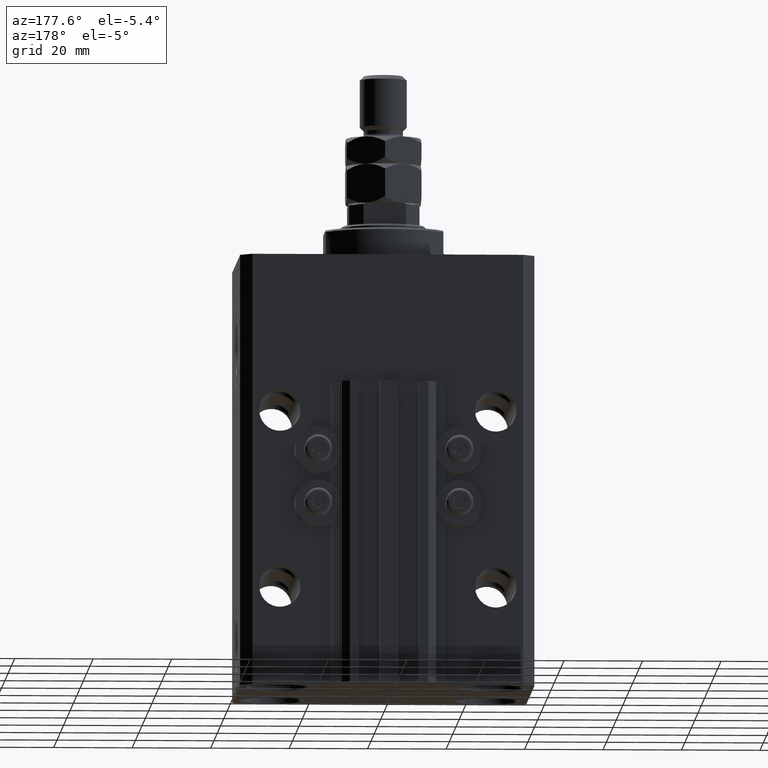
[diagram: clean part render]
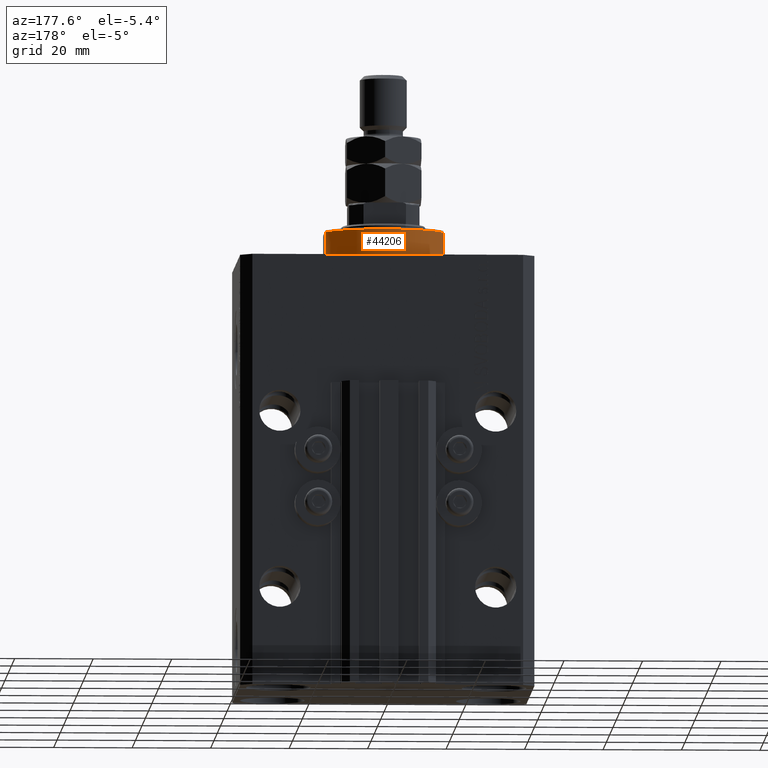
[diagram: same view with one face highlighted and labeled with its STEP entity id]
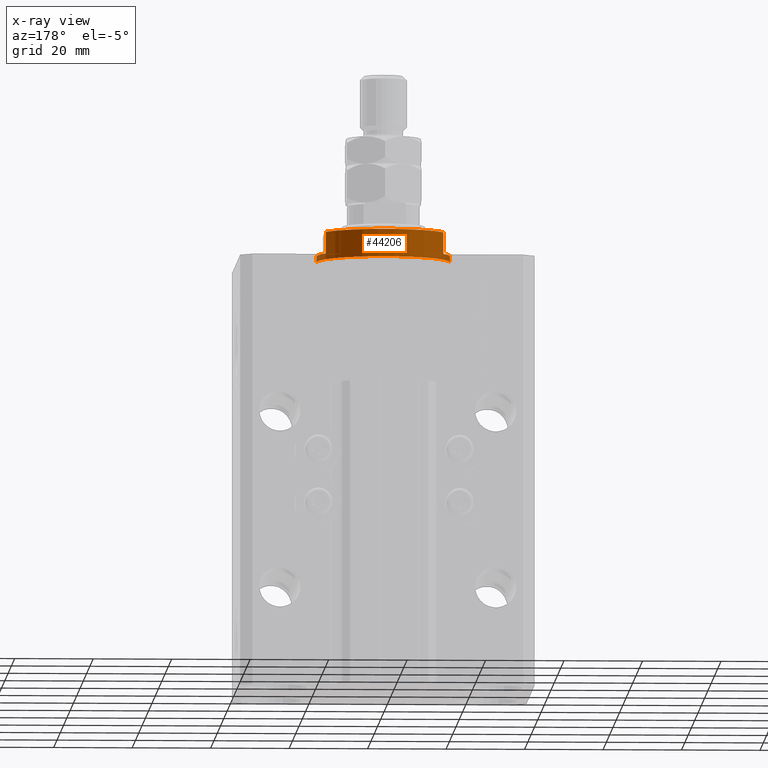
[diagram: x-ray of the same camera — body ghosted, the highlighted face saturated]
A machine part, auxiliary view. The second image highlights one B-rep face of the part: STEP entity #44206.
The next image is the same camera in x-ray: the body ghosted, the highlighted face saturated — about 3% of this face is hidden behind the body in this view.
In plain terms, the highlighted cylindrical surface (partial cylindrical patch) has radius 17 mm, axis along (0, 0, -1).
Its self-contained STEP definition (entity closure, byte-faithful):
#467 = DIRECTION ( 'NONE',  ( -0.000000000000000000, -0.000000000000000000, 1.000000000000000000 ) ) ;
#1630 = DIRECTION ( 'NONE',  ( 1.000000000000000000, 0.000000000000000000, 0.000000000000000000 ) ) ;
#3739 = CARTESIAN_POINT ( 'NONE',  ( 15.00000000000000000, 8.000000000000001776, -7.500000000000007105 ) ) ;
#4102 = EDGE_CURVE ( 'NONE', #47408, #16226, #17632, .T. ) ;
#4302 = DIRECTION ( 'NONE',  ( -0.000000000000000000, -0.000000000000000000, 1.000000000000000000 ) ) ;
#6116 = DIRECTION ( 'NONE',  ( -1.000000000000000000, 0.000000000000000000, 0.000000000000000000 ) ) ;
#6704 = VECTOR ( 'NONE', #13155, 1000.000000000000000 ) ;
#8005 = ORIENTED_EDGE ( 'NONE', *, *, #34894, .T. ) ;
#8032 = VERTEX_POINT ( 'NONE', #31872 ) ;
#8196 = LINE ( 'NONE', #8918, #27655 ) ;
#8918 = CARTESIAN_POINT ( 'NONE',  ( 15.00000000000000000, 8.000000000000001776, -8.000000000000000000 ) ) ;
#9215 = DIRECTION ( 'NONE',  ( -1.000000000000000000, 0.000000000000000000, 0.000000000000000000 ) ) ;
#9656 = AXIS2_PLACEMENT_3D ( 'NONE', #47156, #24389, #1630 ) ;
#9968 = VECTOR ( 'NONE', #4302, 1000.000000000000000 ) ;
#10701 = EDGE_LOOP ( 'NONE', ( #40229, #8005, #48316, #23965, #35964, #43010, #40967, #48431 ) ) ;
#11430 = CIRCLE ( 'NONE', #17841, 17.00000000000000000 ) ;
#12005 = DIRECTION ( 'NONE',  ( -1.000000000000000000, 0.000000000000000000, 0.000000000000000000 ) ) ;
#13155 = DIRECTION ( 'NONE',  ( -0.000000000000000000, -0.000000000000000000, 1.000000000000000000 ) ) ;
#13349 = CARTESIAN_POINT ( 'NONE',  ( 0.000000000000000000, 0.000000000000000000, -2.000000000000000000 ) ) ;
#13501 = EDGE_CURVE ( 'NONE', #49338, #26401, #11430, .T. ) ;
#13622 = VERTEX_POINT ( 'NONE', #24504 ) ;
#13835 = FACE_OUTER_BOUND ( 'NONE', #10701, .T. ) ;
#14372 = CARTESIAN_POINT ( 'NONE',  ( -14.99999999999999645, 8.000000000000003553, -2.000000000000000000 ) ) ;
#16226 = VERTEX_POINT ( 'NONE', #36727 ) ;
#16552 = AXIS2_PLACEMENT_3D ( 'NONE', #25112, #28615, #43885 ) ;
#17632 = CIRCLE ( 'NONE', #9656, 17.00000000000000000 ) ;
#17841 = AXIS2_PLACEMENT_3D ( 'NONE', #33302, #30786, #12005 ) ;
#19291 = EDGE_CURVE ( 'NONE', #49338, #44473, #8196, .T. ) ;
#21290 = CIRCLE ( 'NONE', #37284, 17.00000000000000000 ) ;
#21302 = CARTESIAN_POINT ( 'NONE',  ( 14.99999999999999645, 8.000000000000003553, -2.000000000000000000 ) ) ;
#23306 = LINE ( 'NONE', #38564, #9968 ) ;
#23407 = LINE ( 'NONE', #38409, #37672 ) ;
#23965 = ORIENTED_EDGE ( 'NONE', *, *, #28352, .F. ) ;
#24389 = DIRECTION ( 'NONE',  ( -0.000000000000000000, -0.000000000000000000, -1.000000000000000000 ) ) ;
#24504 = CARTESIAN_POINT ( 'NONE',  ( 17.00000000000000000, 0.000000000000000000, -2.000000000000000000 ) ) ;
#25112 = CARTESIAN_POINT ( 'NONE',  ( 0.000000000000000000, 0.000000000000000000, -8.000000000000000000 ) ) ;
#26084 = EDGE_CURVE ( 'NONE', #44473, #13622, #33721, .T. ) ;
#26401 = VERTEX_POINT ( 'NONE', #29783 ) ;
#27655 = VECTOR ( 'NONE', #467, 1000.000000000000000 ) ;
#27893 = DIRECTION ( 'NONE',  ( -0.000000000000000000, -0.000000000000000000, 1.000000000000000000 ) ) ;
#28352 = EDGE_CURVE ( 'NONE', #13622, #16226, #23407, .T. ) ;
#28480 = DIRECTION ( 'NONE',  ( 0.000000000000000000, 0.000000000000000000, -1.000000000000000000 ) ) ;
#28615 = DIRECTION ( 'NONE',  ( -0.000000000000000000, -0.000000000000000000, 1.000000000000000000 ) ) ;
#28626 = DIRECTION ( 'NONE',  ( 0.000000000000000000, 0.000000000000000000, -1.000000000000000000 ) ) ;
#29783 = CARTESIAN_POINT ( 'NONE',  ( -15.00000000000000000, 8.000000000000001776, -7.500000000000007105 ) ) ;
#30786 = DIRECTION ( 'NONE',  ( 0.000000000000000000, 0.000000000000000000, 1.000000000000000000 ) ) ;
#31872 = CARTESIAN_POINT ( 'NONE',  ( -17.00000000000000000, 2.081899558550500280E-15, -2.000000000000000000 ) ) ;
#31991 = CARTESIAN_POINT ( 'NONE',  ( 0.000000000000000000, 0.000000000000000000, -2.000000000000000000 ) ) ;
#33172 = EDGE_CURVE ( 'NONE', #26401, #39609, #39689, .T. ) ;
#33302 = CARTESIAN_POINT ( 'NONE',  ( 0.000000000000000000, 0.000000000000000000, -7.500000000000007105 ) ) ;
#33721 = CIRCLE ( 'NONE', #36154, 17.00000000000000000 ) ;
#34894 = EDGE_CURVE ( 'NONE', #8032, #47408, #23306, .T. ) ;
#35936 = CARTESIAN_POINT ( 'NONE',  ( -15.00000000000000000, 8.000000000000001776, -8.000000000000000000 ) ) ;
#35964 = ORIENTED_EDGE ( 'NONE', *, *, #26084, .F. ) ;
#36154 = AXIS2_PLACEMENT_3D ( 'NONE', #13349, #28626, #6116 ) ;
#36727 = CARTESIAN_POINT ( 'NONE',  ( 17.00000000000000000, 0.000000000000000000, -0.5000000000000004441 ) ) ;
#37284 = AXIS2_PLACEMENT_3D ( 'NONE', #31991, #28480, #9215 ) ;
#37672 = VECTOR ( 'NONE', #27893, 1000.000000000000000 ) ;
#38409 = CARTESIAN_POINT ( 'NONE',  ( 17.00000000000000000, 0.000000000000000000, -8.000000000000000000 ) ) ;
#38564 = CARTESIAN_POINT ( 'NONE',  ( -17.00000000000000000, 2.081899558550500280E-15, -8.000000000000000000 ) ) ;
#39609 = VERTEX_POINT ( 'NONE', #14372 ) ;
#39689 = LINE ( 'NONE', #35936, #6704 ) ;
#40229 = ORIENTED_EDGE ( 'NONE', *, *, #42823, .F. ) ;
#40967 = ORIENTED_EDGE ( 'NONE', *, *, #13501, .T. ) ;
#42823 = EDGE_CURVE ( 'NONE', #8032, #39609, #21290, .T. ) ;
#43010 = ORIENTED_EDGE ( 'NONE', *, *, #19291, .F. ) ;
#43304 = CARTESIAN_POINT ( 'NONE',  ( -17.00000000000000000, 2.081899558550500280E-15, -0.5000000000000004441 ) ) ;
#43885 = DIRECTION ( 'NONE',  ( 1.000000000000000000, 0.000000000000000000, 0.000000000000000000 ) ) ;
#44131 = CYLINDRICAL_SURFACE ( 'NONE', #16552, 17.00000000000000000 ) ;
#44206 = ADVANCED_FACE ( 'NONE', ( #13835 ), #44131, .T. ) ;
#44473 = VERTEX_POINT ( 'NONE', #21302 ) ;
#47156 = CARTESIAN_POINT ( 'NONE',  ( 0.000000000000000000, 0.000000000000000000, -0.5000000000000004441 ) ) ;
#47408 = VERTEX_POINT ( 'NONE', #43304 ) ;
#48316 = ORIENTED_EDGE ( 'NONE', *, *, #4102, .T. ) ;
#48431 = ORIENTED_EDGE ( 'NONE', *, *, #33172, .T. ) ;
#49338 = VERTEX_POINT ( 'NONE', #3739 ) ;